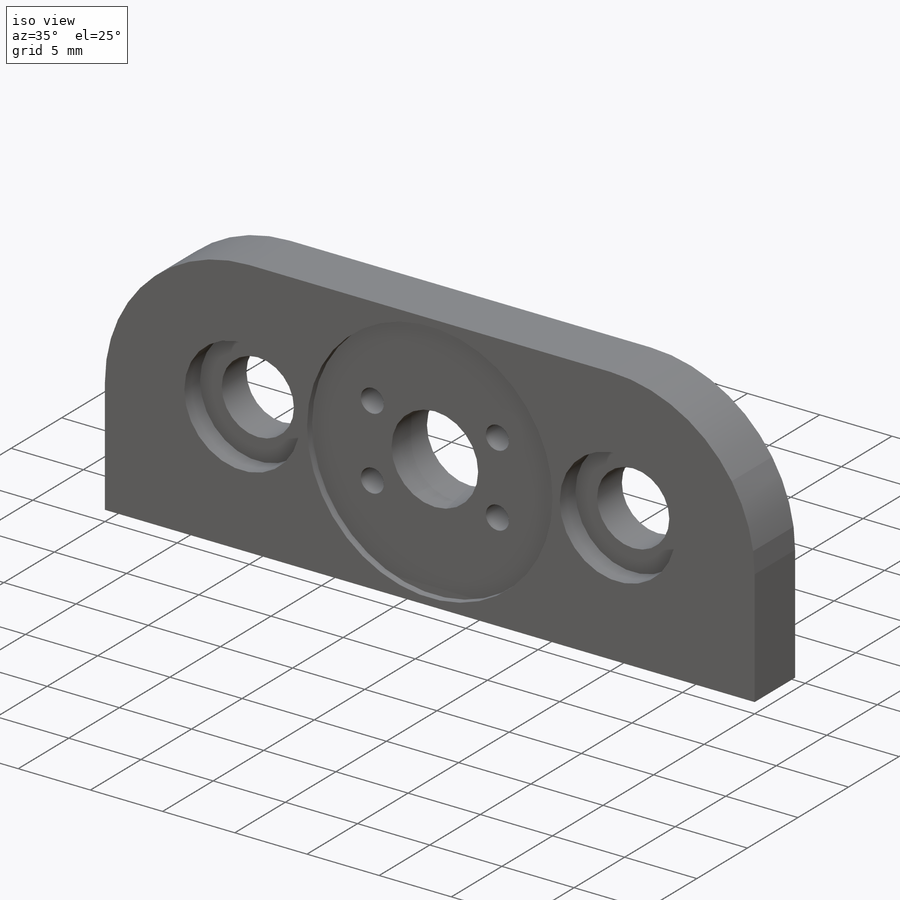
[diagram: iso view]
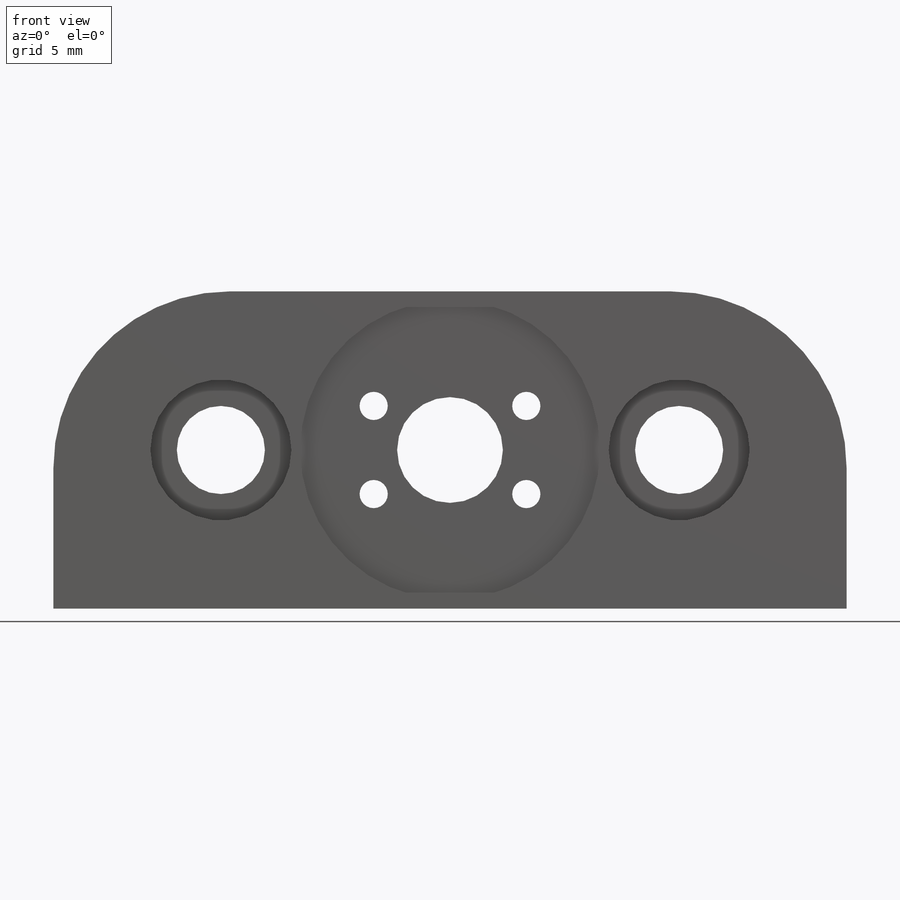
[diagram: front view]
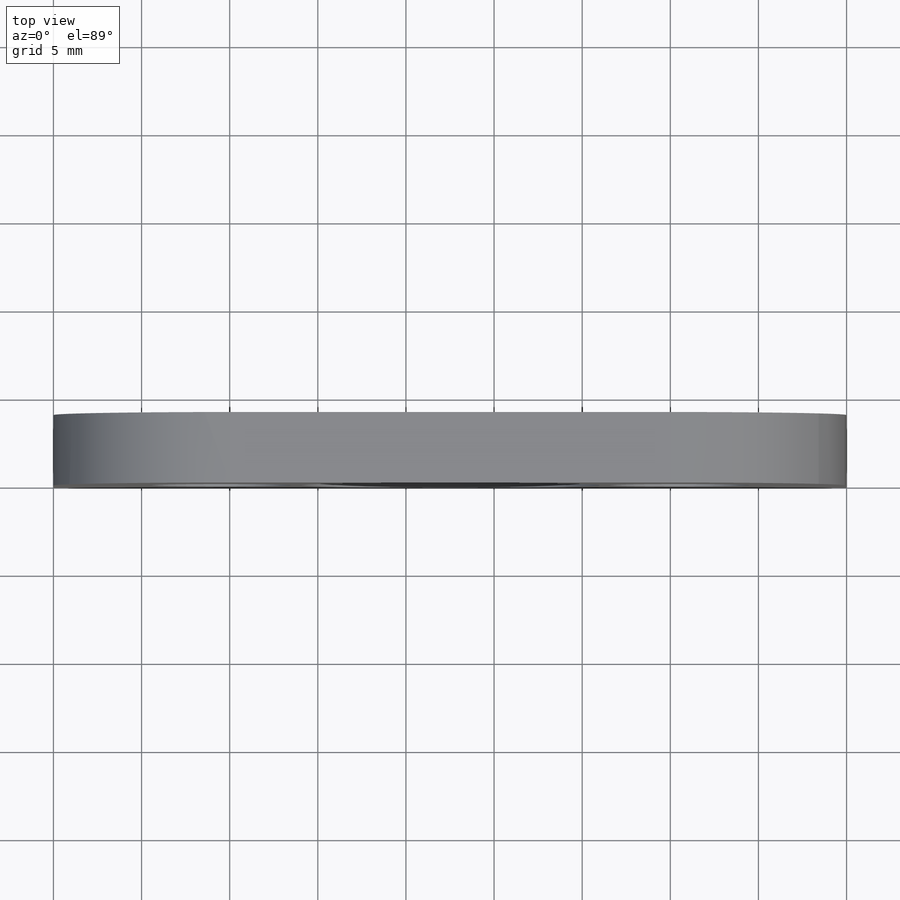
[diagram: top view]
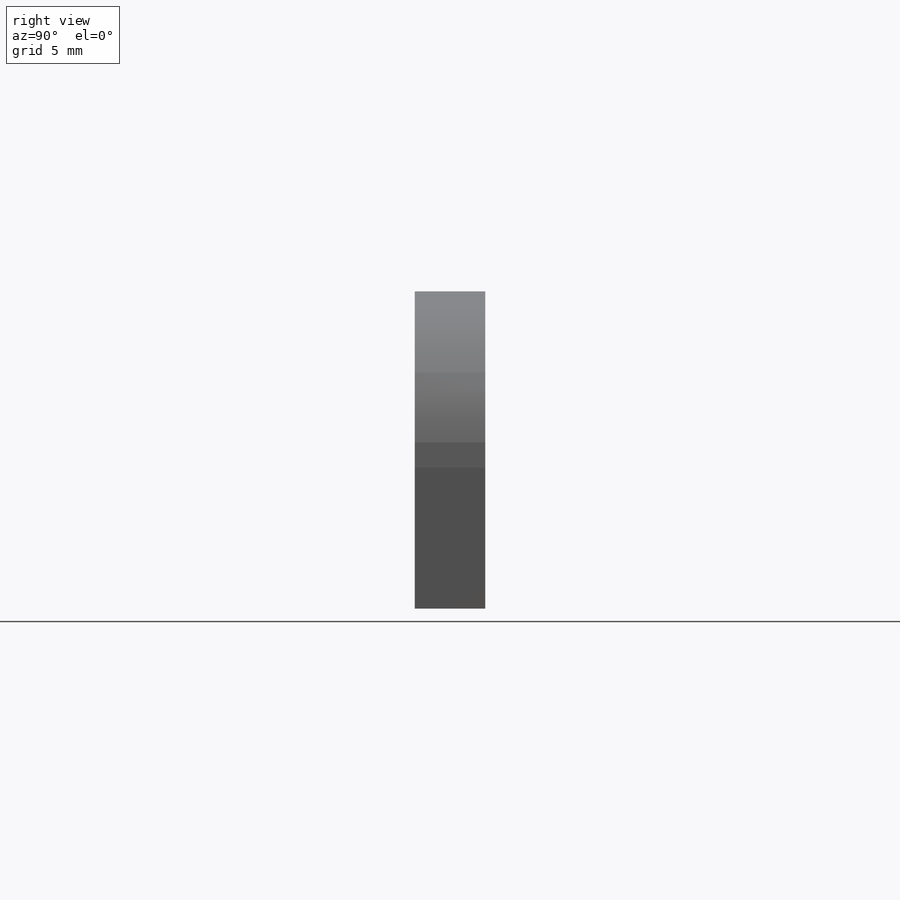
[diagram: right view]
SOLIDWORKS PART (.sldprt)
format: sldprt  version: not decoded by parser v0  size: 310,784 bytes
history: native  units: mm
features: sketch x9, cut_extrude x8, material x1, extrude x1, fillet x1, chamfer x1 (+12 scaffold rows collapsed)
feature tree (33):
  scaffold x12  (default folders/planes/origin — collapsed)
  material  "Material <not specified>"
  sketch  "Sketch1"  dims[D1=45.0mm D2=4.0mm]
  extrude  "Boss-Extrude1"  Depth=18mm
  sketch  "Sketch2"  dims[D1=17.0mm]
  cut_extrude  "Cut-Extrude2"  Depth=0.5mm
  sketch  "Sketch3"  dims[D1=6.0mm]
  cut_extrude  "Cut-Extrude3"  [1 undecoded]
  sketch  "Sketch4"  dims[D1=5.0mm D2=13.0mm D3=9.0mm]
  cut_extrude  "Cut-Extrude4"  [1 undecoded]
  sketch  "Sketch6"  dims[D1=10.0mm D2=1.6mm]
  cut_extrude  "Cut-Extrude6"  [1 undecoded]
  fillet  "Fillet1"  Radius=10mm
  sketch  "Sketch7"  dims[D1=8.0mm]
  cut_extrude  "Cut-Extrude7"  Depth=1.555mm
  sketch  "Sketch8"  dims[D1=3.2mm]
  cut_extrude  "Cut-Extrude8"  Depth=1.3mm
  sketch  "Sketch9"  dims[D1=1.8mm]
  sketch  "Sketch10"  dims[D1=~1.385641mm]
  cut_extrude  "Cut-Extrude9"  Depth=5mm
  cut_extrude  "Cut-Extrude10"  Depth=5mm
  chamfer  "Chamfer1"  Distance=0.7mm
decode coverage: 17 of 20 modeling features carry decoded parameters
note: ~ marks probable driven/reference dimensions
note: 3 parameter values undecoded
summary: no parameter record found for 3 features
note: suppression state not decoded; provenance and decode notes live in map.json
